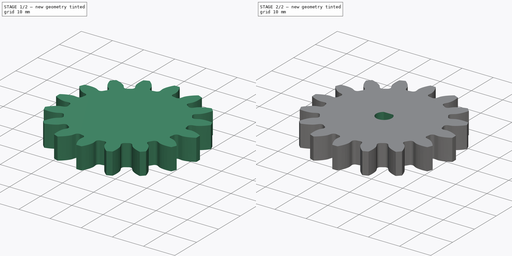
[diagram: build sequence overview — one tinted view per stage of 2, left to right]
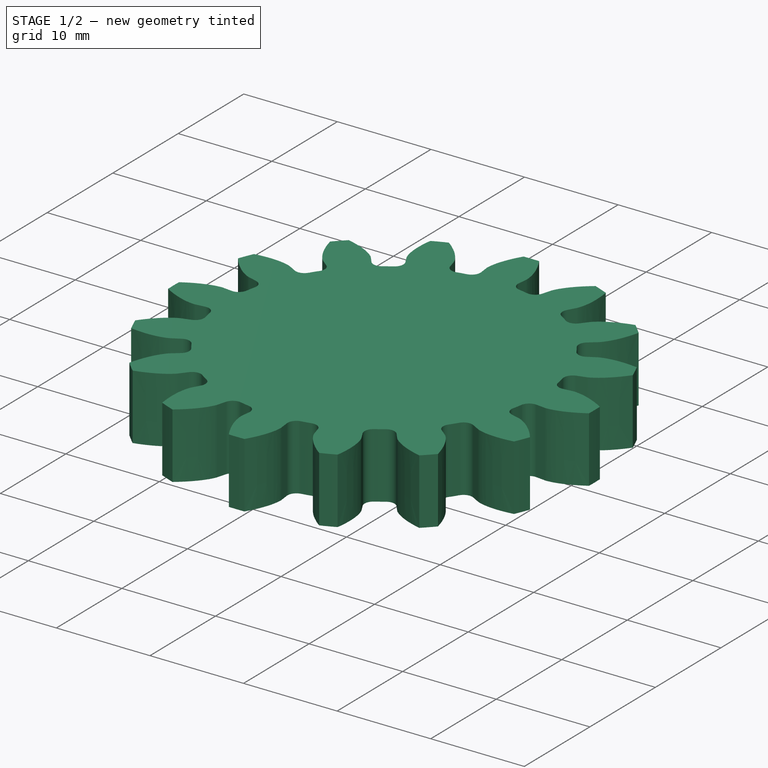
[diagram: stage 1 of 2 — iso view after this stage's code; geometry added in this stage tinted green]
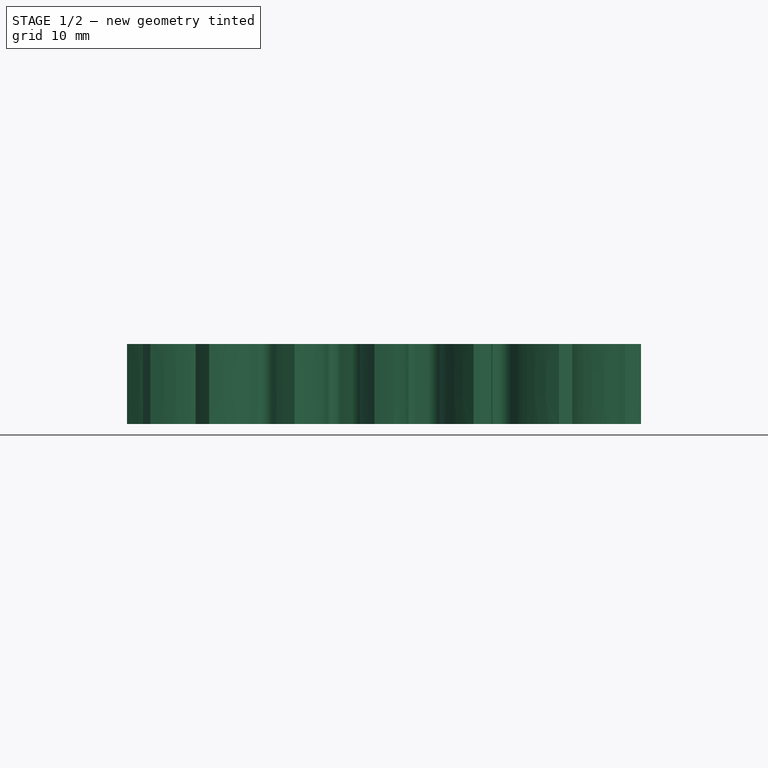
[diagram: stage 1 of 2 — front view after this stage's code; geometry added in this stage tinted green]
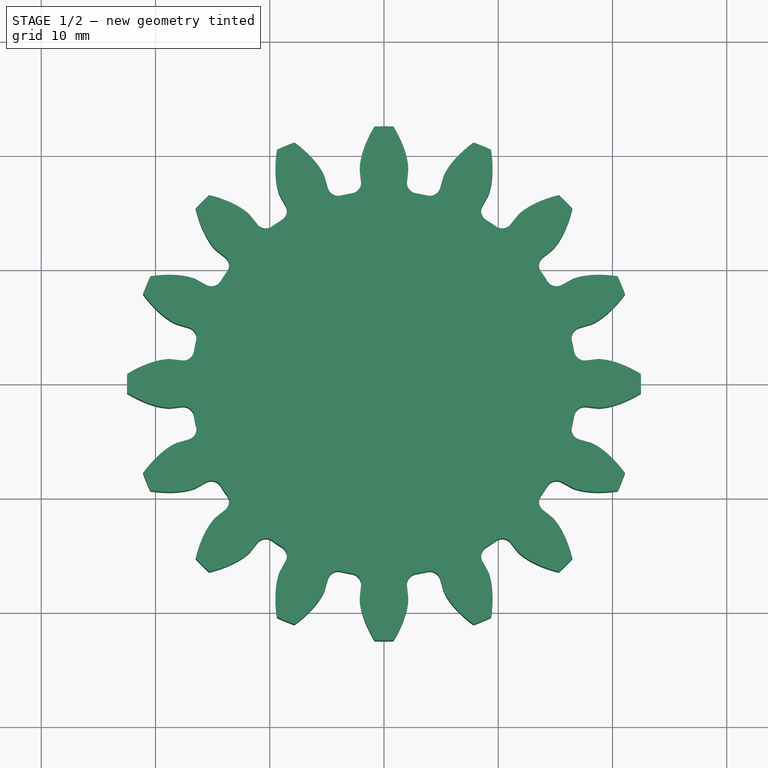
[diagram: stage 1 of 2 — top view after this stage's code; geometry added in this stage tinted green]
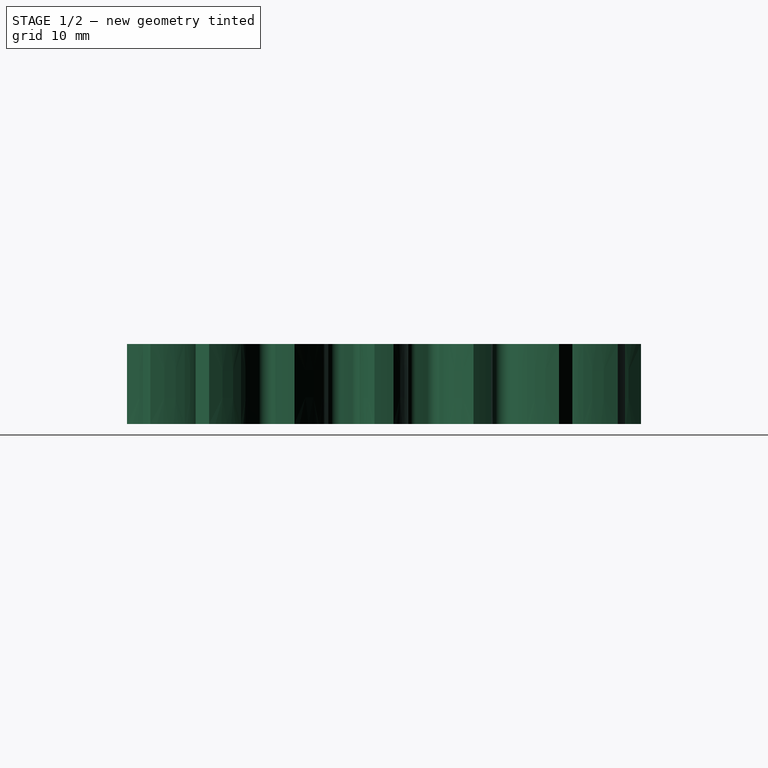
[diagram: stage 1 of 2 — right view after this stage's code; geometry added in this stage tinted green]
FCSTD DOCUMENT  (FreeCAD 0.21R33771 (Git))
Label: StepperGear
License: All rights reserved
LicenseURL: https://en.wikipedia.org/wiki/All_rights_reserved
objects: App::Part×1, Part::Part2DObjectPython×1, PartDesign::Pad×1, Sketcher::SketchObject×1, PartDesign::Pocket×1, PartDesign::Body×1
note: 7 computed .brp shape members not serialized (recipe doc carries the construction recipe); baked Part::Feature solids carry a one-line shape summary decoded from their .brp

FEATURE [App::Part] Part
  Origin = -> Origin
FEATURE [Part::Part2DObjectPython] InvoluteGear  # Draft 2D object (typed FeaturePython)
  AddendumCoefficient = 1
  DedendumCoefficient = 1.25
  ExternalGear = true
  HighPrecision = true
  Modules = 2.5
  NumberOfTeeth = 16
  PressureAngle = 20
  ProfileShiftCoefficient = 0
  RootFilletCoefficient = 0.38
FEATURE [PartDesign::Pad] Pad
  Direction = (0,0,1)
  Length = 7
  Length2 = 10
  Profile = -> InvoluteGear
  ReferenceAxis = -> InvoluteGear [N_Axis]
  Type = 0
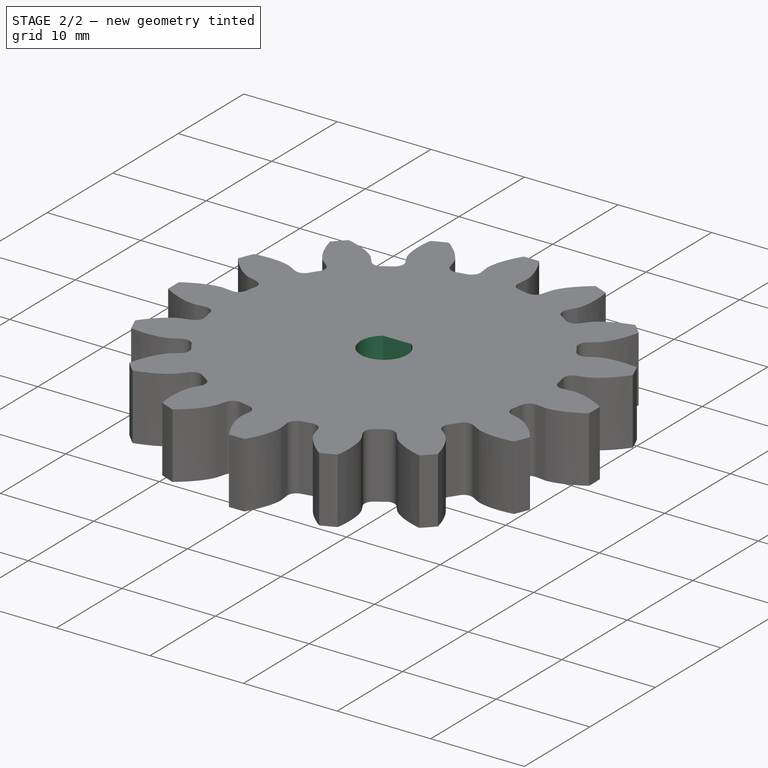
[diagram: stage 2 of 2 — iso view after this stage's code; geometry added in this stage tinted green]
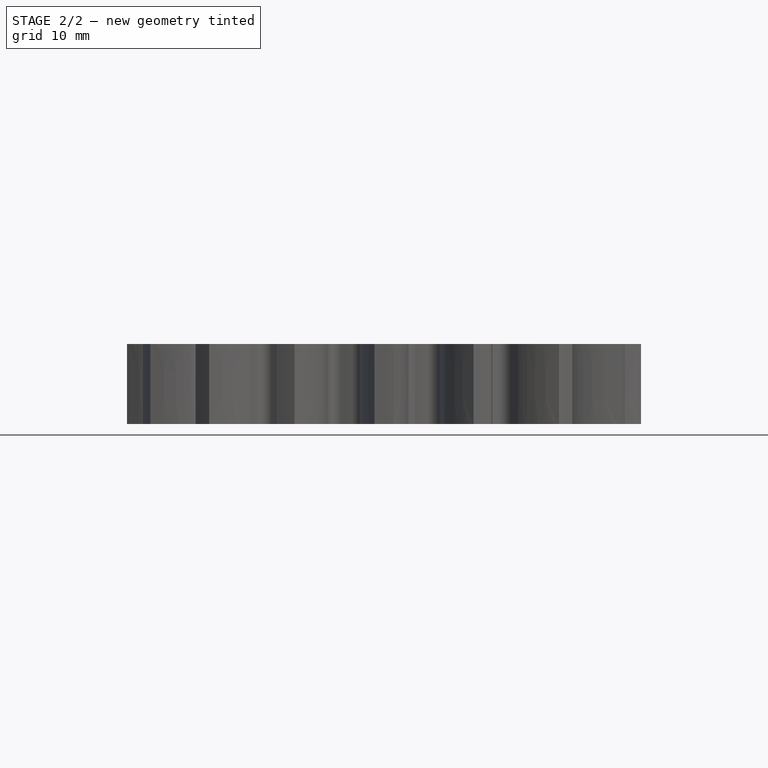
[diagram: stage 2 of 2 — front view after this stage's code; geometry added in this stage tinted green]
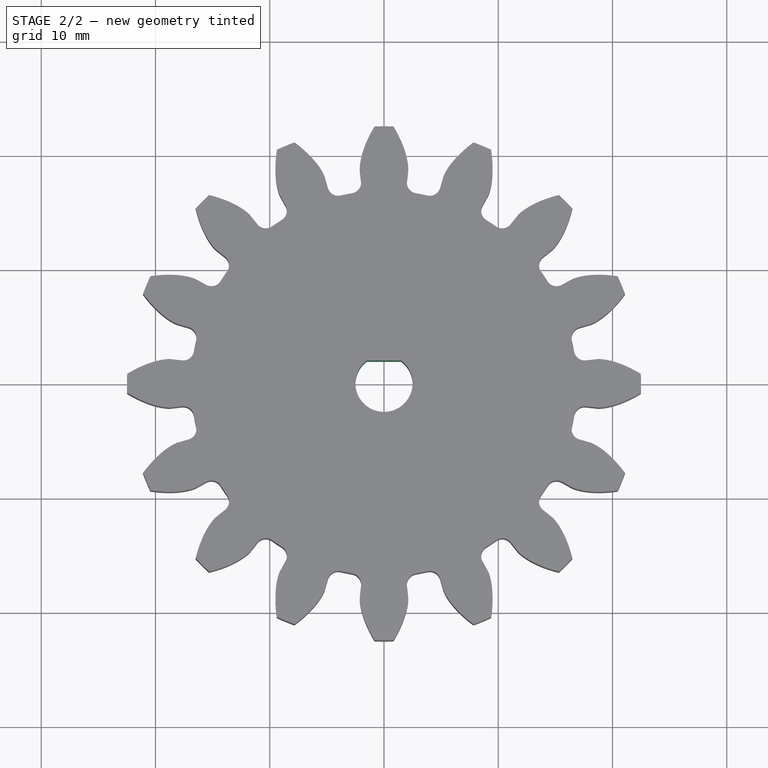
[diagram: stage 2 of 2 — top view after this stage's code; geometry added in this stage tinted green]
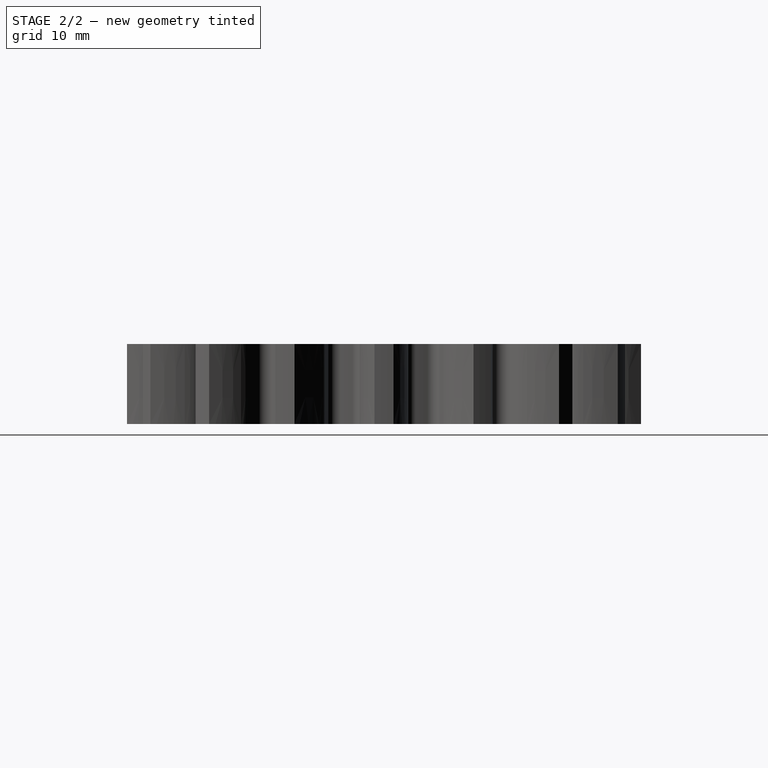
[diagram: stage 2 of 2 — right view after this stage's code; geometry added in this stage tinted green]
FEATURE [Sketcher::SketchObject] Sketch
  FullyConstrained = true
  MapMode = 5
  Placement = pos=(0,0,7) rot=(0,0,1;0rad)
  Support = -> [Pad]
  sketch-geometry (2):
    g0: ArcOfCircle CenterX=0 CenterY=0 CenterZ=0 NormalX=0 NormalY=0 NormalZ=1 AngleXU=0 Radius=2.5 StartAngle=2.2143 EndAngle=7.21048
    g1: LineSegment StartX=-1.5 StartY=2 StartZ=0 EndX=1.5 EndY=2 EndZ=0
  constraints (6):
    c: Coincident(g0,g-1)
    c: Coincident(g1,g0)
    c: Coincident(g1,g0)
    c: Horizontal(g1)
    c: Diameter(g0) = 5
    c: DistanceY(g0,g0) = 2
FEATURE [PartDesign::Pocket] Pocket
  BaseFeature = -> Pad
  Direction = (0,0,-1)
  Length = 7
  Length2 = 5
  Profile = -> Sketch
  ReferenceAxis = -> Sketch [N_Axis]
  Type = 0
FEATURE [PartDesign::Body] Body
  Group = -> [InvoluteGear,Pad,Sketch,Pocket]
  Origin = -> Origin001
  Tip = -> Pocket
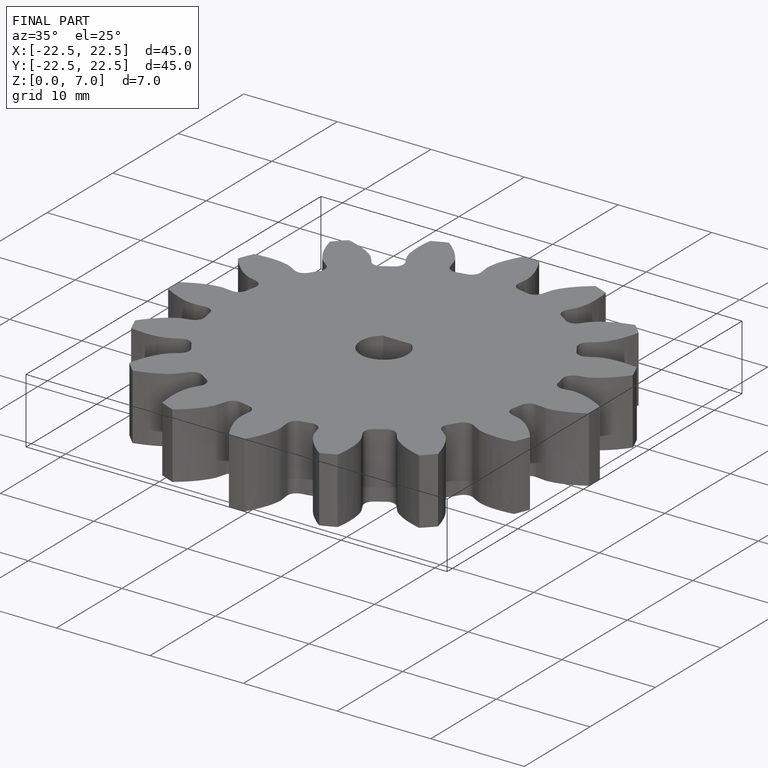
[diagram: finished part — iso view with bounding-box wireframe]
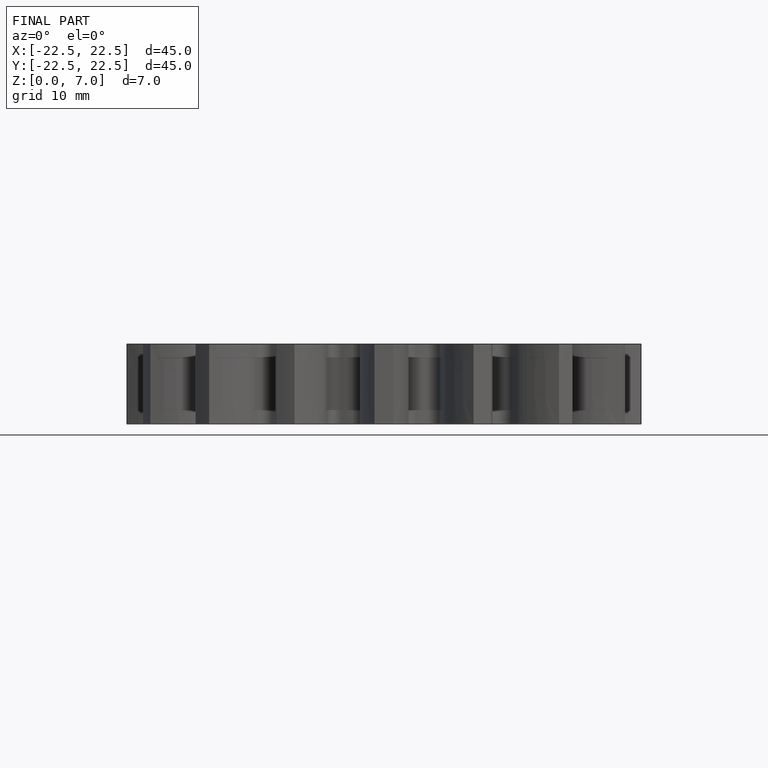
[diagram: finished part — front view with bounding-box wireframe]
